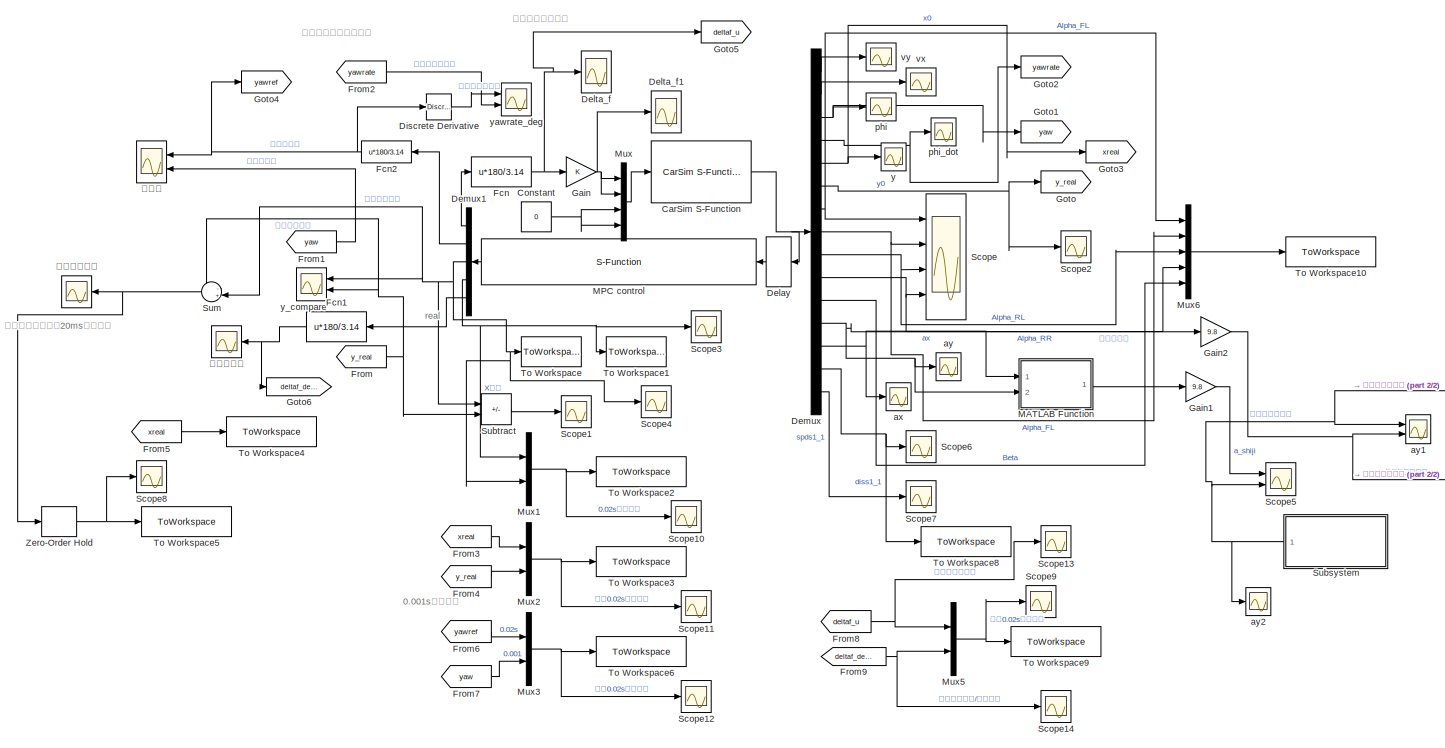
[diagram: root canvas - part 1/2, most of the canvas]
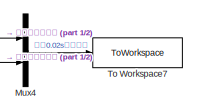
[diagram: root canvas - part 2/2, middle right region]
MODEL slx_88fed93ea479
KIND model
CONFIG AbsTol = auto
CONFIG EnableMultiTasking = off
CONFIG FixedStep = 0.001
CONFIG MaxStep = auto
CONFIG MinStep = auto
CONFIG PostLoadFcn = , if any(exist('dsrtsu_mdlpostloadfcn', 'file') == [2, 3, 6]), try dsrtsu_mdlpostloadfcn('Execute', bdroot); catch fprintf('Error in PostLoadFcn (dsrtsu_mdlpostloadfcn) for model "%s":\n %s\n', bdroot, lasterr); end, end, \n
CONFIG RelTol = 1e-3
CONFIG SampleTimeConstraint = Unconstrained
CONFIG SolverName = FixedStepAuto
CONFIG StartTime = 0.0
CONFIG StopTime = 6
BLOCK [Reference] CarSim S-Function  REF=Solver_SF/CarSim S-Function
  Ports = [1, 1]
  Priority = 1
  SourceBlock = Solver_SF/CarSim S-Function
  SourceProductName = CarSim S-Function
  SourceType = Vehicle math model library
BLOCK [Constant] Constant
  Value = 0
BLOCK [Delay] Delay
  DelayLength = 1
  InitialCondition = 0
  InputPortMap = u0
  NameLocation = top
  Ports = [1, 1]
BLOCK [Scope] Delta_f
  Floating = off
  NumInputPorts = 1
  Ports = [1]
  ScopeSpecificationString = Simulink.scopes.TimeScopeBlockCfg('CurrentConfiguration', extmgr.ConfigurationSet(extmgr.Configuration('Core','General UI',true),extmgr.Configuration('Core','Source UI',true),extmgr.Configuration('Sources','WiredSimulink',true,'DataLoggingVariableName','ScopeData1'),extmgr.Configuration('Visuals','Time Domain',true,'SerializedDisplays',{struct('MinYLimReal','-0.90495','MaxYLimReal','0.93192','YLab...<+1439ch>
BLOCK [Scope] Delta_f1
  Floating = off
  NumInputPorts = 1
  Ports = [1]
  ScopeSpecificationString = Simulink.scopes.TimeScopeBlockCfg('CurrentConfiguration', extmgr.ConfigurationSet(extmgr.Configuration('Core','General UI',true),extmgr.Configuration('Core','Source UI',true),extmgr.Configuration('Sources','WiredSimulink',true,'DataLoggingVariableName','ScopeData1'),extmgr.Configuration('Visuals','Time Domain',true,'SerializedDisplays',{struct('MinYLimReal','-22.26371','MaxYLimReal','22.31421','YL...<+1449ch>
BLOCK [Demux] Demux
  Outputs = 15
  Ports = [1, 15]
BLOCK [Demux] Demux1
  NameLocation = top
  Outputs = 5
  Ports = [1, 5]
BLOCK [Reference] Discrete Derivative  REF=simulink/Discrete/Discrete Derivative
  Ports = [1, 1]
  SourceBlock = simulink/Discrete/Discrete Derivative
  SourceProductBaseCode = SL
  SourceType = Discrete Derivative
BLOCK [Fcn] Fcn
  Expr = u*180/3.14
BLOCK [Fcn] Fcn1
  Expr = u*180/3.14
  NameLocation = top
BLOCK [Fcn] Fcn2
  Expr = u*180/3.14
  NameLocation = top
BLOCK [From] From
  GotoTag = y_real
BLOCK [From] From1
  GotoTag = yaw
BLOCK [From] From2
  GotoTag = yawrate
BLOCK [From] From3
  GotoTag = xreal
BLOCK [From] From4
  GotoTag = y_real
BLOCK [From] From5
  GotoTag = xreal
BLOCK [From] From6
  GotoTag = yawref
BLOCK [From] From7
  GotoTag = yaw
BLOCK [From] From8
  GotoTag = deltaf_u
BLOCK [From] From9
  GotoTag = deltaf_deltaU
BLOCK [Gain] Gain
BLOCK [Gain] Gain1
  Gain = 9.8
BLOCK [Gain] Gain2
  Gain = 9.8
BLOCK [Goto] Goto
  GotoTag = y_real
BLOCK [Goto] Goto1
  GotoTag = yaw
BLOCK [Goto] Goto2
  GotoTag = yawrate
BLOCK [Goto] Goto3
  GotoTag = xreal
BLOCK [Goto] Goto4
  GotoTag = yawref
BLOCK [Goto] Goto5
  GotoTag = deltaf_u
BLOCK [Goto] Goto6
  GotoTag = deltaf_deltaU
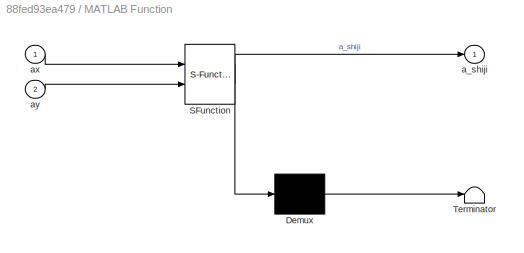
BLOCK [SubSystem] MATLAB Function
  ErrorFcn = Stateflow.Translate.translate
  PermitHierarchicalResolution = ExplicitOnly
  Ports = [2, 1]
  RequestExecContextInheritance = off
  SFBlockType = MATLAB Function
  TreatAsAtomicUnit = on
BLOCK [Demux] MATLAB Function/ Demux 
  Outputs = 1
  Ports = [1, 1]
BLOCK [S-Function] MATLAB Function/ SFunction 
  EnableBusSupport = on
  FunctionName = sf_sfun
  PortCounts = [2 2]
  Ports = [2, 2]
  SFcnIsStateOwnerBlock = off
  SFunctionDeploymentMode = off
  Tag = Stateflow S-Function 2
BLOCK [Terminator] MATLAB Function/ Terminator 
BLOCK [Outport] MATLAB Function/a_shiji
BLOCK [Inport] MATLAB Function/ax
BLOCK [Inport] MATLAB Function/ay
  Port = 2
BLOCK [S-Function] MPC control
  EnableBusSupport = off
  FunctionName = planning_control_add_beta_and_y
  NameLocation = top
  Ports = [1, 1]
  SFcnIsStateOwnerBlock = off
  SFunctionDeploymentMode = off
BLOCK [Mux] Mux
  DisplayOption = bar
  Ports = [4, 1]
BLOCK [Mux] Mux1
  DisplayOption = bar
  Inputs = 2
  Ports = [2, 1]
BLOCK [Mux] Mux2
  DisplayOption = bar
  Inputs = 2
  Ports = [2, 1]
BLOCK [Mux] Mux3
  DisplayOption = bar
  Inputs = 2
  Ports = [2, 1]
BLOCK [Mux] Mux4
  DisplayOption = bar
  Inputs = 2
  Ports = [2, 1]
BLOCK [Mux] Mux5
  DisplayOption = bar
  Inputs = 2
  Ports = [2, 1]
BLOCK [Mux] Mux6
  DisplayOption = bar
  Inputs = 5
  Ports = [5, 1]
BLOCK [Scope] Scope
  Floating = off
  NumInputPorts = 4
  Ports = [4]
  ScopeSpecificationString = Simulink.scopes.TimeScopeBlockCfg('CurrentConfiguration', extmgr.ConfigurationSet(extmgr.Configuration('Core','General UI',true,'FigureColor',[1 1 1]),extmgr.Configuration('Core','Source UI',true),extmgr.Configuration('Sources','WiredSimulink',true,'DataLoggingVariableName','ScopeData5','DataLoggingSaveFormat','Array','DataLoggingDecimation','1','DataLoggingDecimateData',true),extmgr.Configuration...<+1984ch>
BLOCK [Scope] Scope1
  Floating = off
  NumInputPorts = 1
  Ports = [1]
  ScopeSpecificationString = Simulink.scopes.TimeScopeBlockCfg('CurrentConfiguration', extmgr.ConfigurationSet(extmgr.Configuration('Core','General UI',true),extmgr.Configuration('Core','Source UI',true),extmgr.Configuration('Sources','WiredSimulink',true,'DataLoggingVariableName','ScopeData1'),extmgr.Configuration('Visuals','Time Domain',true,'SerializedDisplays',{struct('MinYLimReal','-0.05098','MaxYLimReal','0.14382','YLab...<+1423ch>
BLOCK [Scope] Scope10
  Floating = off
  NumInputPorts = 1
  Ports = [1]
  ScopeSpecificationString = Simulink.scopes.TimeScopeBlockCfg('CurrentConfiguration', extmgr.ConfigurationSet(extmgr.Configuration('Core','General UI',true),extmgr.Configuration('Core','Source UI',true),extmgr.Configuration('Sources','WiredSimulink',true,'DataLoggingVariableName','ScopeData1'),extmgr.Configuration('Visuals','Time Domain',true,'SerializedDisplays',{struct('MinYLimReal','-26.23635','MaxYLimReal','236.12712','Y...<+1490ch>
BLOCK [Scope] Scope11
  Floating = off
  NumInputPorts = 1
  Ports = [1]
  ScopeSpecificationString = Simulink.scopes.TimeScopeBlockCfg('CurrentConfiguration', extmgr.ConfigurationSet(extmgr.Configuration('Core','General UI',true),extmgr.Configuration('Core','Source UI',true),extmgr.Configuration('Sources','WiredSimulink',true,'DataLoggingVariableName','ScopeData2'),extmgr.Configuration('Visuals','Time Domain',true,'SerializedDisplays',{struct('MinYLimReal','-24.96793','MaxYLimReal','224.71141','Y...<+1494ch>
BLOCK [Scope] Scope12
  Floating = off
  NumInputPorts = 1
  Ports = [1]
  ScopeSpecificationString = Simulink.scopes.TimeScopeBlockCfg('CurrentConfiguration', extmgr.ConfigurationSet(extmgr.Configuration('Core','General UI',true),extmgr.Configuration('Core','Source UI',true),extmgr.Configuration('Sources','WiredSimulink',true,'DataLoggingVariableName','ScopeData3'),extmgr.Configuration('Visuals','Time Domain',true,'SerializedDisplays',{struct('MinYLimReal','-1.65804','MaxYLimReal','1.72024','YLab...<+1484ch>
BLOCK [Scope] Scope13
  Floating = off
  NumInputPorts = 1
  Ports = [1]
  ScopeSpecificationString = Simulink.scopes.TimeScopeBlockCfg('CurrentConfiguration', extmgr.ConfigurationSet(extmgr.Configuration('Core','General UI',true,'FigureColor',[1 1 1]),extmgr.Configuration('Core','Source UI',true),extmgr.Configuration('Sources','WiredSimulink',true,'DataLoggingVariableName','ScopeData4'),extmgr.Configuration('Visuals','Time Domain',true,'SerializedDisplays',{struct('MinYLimReal','-1.4544','MaxYLim...<+1613ch>
BLOCK [Scope] Scope14
  Floating = off
  NumInputPorts = 1
  Ports = [1]
  ScopeSpecificationString = Simulink.scopes.TimeScopeBlockCfg('CurrentConfiguration', extmgr.ConfigurationSet(extmgr.Configuration('Core','General UI',true,'FigureColor',[1 1 1]),extmgr.Configuration('Core','Source UI',true),extmgr.Configuration('Sources','WiredSimulink',true,'DataLoggingVariableName','ScopeData5'),extmgr.Configuration('Visuals','Time Domain',true,'SerializedDisplays',{struct('MinYLimReal','-0.06705','MaxYLi...<+1618ch>
BLOCK [Scope] Scope2
  Floating = off
  NumInputPorts = 1
  Ports = [1]
  ScopeSpecificationString = Simulink.scopes.TimeScopeBlockCfg('CurrentConfiguration', extmgr.ConfigurationSet(extmgr.Configuration('Core','General UI',true),extmgr.Configuration('Core','Source UI',true),extmgr.Configuration('Sources','WiredSimulink',true,'DataLoggingVariableName','ScopeData1'),extmgr.Configuration('Visuals','Time Domain',true,'SerializedDisplays',{struct('MinYLimReal','-0.4695','MaxYLimReal','4.22546','YLabe...<+1411ch>
BLOCK [Scope] Scope3
  Floating = off
  NumInputPorts = 1
  Ports = [1]
  ScopeSpecificationString = Simulink.scopes.TimeScopeBlockCfg('CurrentConfiguration', extmgr.ConfigurationSet(extmgr.Configuration('Core','General UI',true),extmgr.Configuration('Core','Source UI',true),extmgr.Configuration('Sources','WiredSimulink',true,'DataLoggingVariableName','ScopeData2'),extmgr.Configuration('Visuals','Time Domain',true,'SerializedDisplays',{struct('MinYLimReal','-21.66312','MaxYLimReal','196.77358','Y...<+1445ch>
BLOCK [Scope] Scope4
  Floating = off
  NumInputPorts = 1
  Ports = [1]
  ScopeSpecificationString = Simulink.scopes.TimeScopeBlockCfg('CurrentConfiguration', extmgr.ConfigurationSet(extmgr.Configuration('Core','General UI',true),extmgr.Configuration('Core','Source UI',true),extmgr.Configuration('Sources','WiredSimulink',true,'DataLoggingVariableName','ScopeData3'),extmgr.Configuration('Visuals','Time Domain',true,'SerializedDisplays',{struct('MinYLimReal','0.71959','MaxYLimReal','1.08186','YLabe...<+1411ch>
BLOCK [Scope] Scope5
  Floating = off
  NumInputPorts = 2
  Ports = [2]
  ScopeSpecificationString = Simulink.scopes.TimeScopeBlockCfg('CurrentConfiguration', extmgr.ConfigurationSet(extmgr.Configuration('Core','General UI',true),extmgr.Configuration('Core','Source UI',true),extmgr.Configuration('Sources','WiredSimulink',true,'DataLoggingVariableName','ScopeData5'),extmgr.Configuration('Visuals','Time Domain',true,'SerializedDisplays',{struct('MinYLimReal','-4.53015','MaxYLimReal','4.52542','YLab...<+1437ch>
BLOCK [Scope] Scope6
  Floating = off
  NumInputPorts = 1
  Ports = [1]
  ScopeSpecificationString = Simulink.scopes.TimeScopeBlockCfg('CurrentConfiguration', extmgr.ConfigurationSet(extmgr.Configuration('Core','General UI',true),extmgr.Configuration('Core','Source UI',true),extmgr.Configuration('Sources','WiredSimulink',true,'DataLoggingVariableName','ScopeData3'),extmgr.Configuration('Visuals','Time Domain',true,'SerializedDisplays',{struct('MinYLimReal','-6.4273','MaxYLimReal','9.56094','YLabe...<+1437ch>
BLOCK [Scope] Scope7
  Floating = off
  NumInputPorts = 1
  Ports = [1]
  ScopeSpecificationString = Simulink.scopes.TimeScopeBlockCfg('CurrentConfiguration', extmgr.ConfigurationSet(extmgr.Configuration('Core','General UI',true),extmgr.Configuration('Core','Source UI',true),extmgr.Configuration('Sources','WiredSimulink',true,'DataLoggingVariableName','ScopeData4'),extmgr.Configuration('Visuals','Time Domain',true,'SerializedDisplays',{struct('MinYLimReal','-135.9916','MaxYLimReal','23.92444','YL...<+1426ch>
BLOCK [Scope] Scope8
  Floating = off
  NumInputPorts = 1
  Ports = [1]
  ScopeSpecificationString = Simulink.scopes.TimeScopeBlockCfg('CurrentConfiguration', extmgr.ConfigurationSet(extmgr.Configuration('Core','General UI',true),extmgr.Configuration('Core','Source UI',true),extmgr.Configuration('Sources','WiredSimulink',true,'DataLoggingVariableName','ScopeData6'),extmgr.Configuration('Visuals','Time Domain',true,'SerializedDisplays',{struct('MinYLimReal','-0.04167','MaxYLimReal','0.15735','YLab...<+1399ch>
BLOCK [Scope] Scope9
  Floating = off
  NumInputPorts = 1
  Ports = [1]
  ScopeSpecificationString = Simulink.scopes.TimeScopeBlockCfg('CurrentConfiguration', extmgr.ConfigurationSet(extmgr.Configuration('Core','General UI',true),extmgr.Configuration('Core','Source UI',true),extmgr.Configuration('Sources','WiredSimulink',true,'DataLoggingVariableName','ScopeData7'),extmgr.Configuration('Visuals','Time Domain',true,'SerializedDisplays',{struct('MinYLimReal','-1.4544','MaxYLimReal','1.53514','YLabe...<+1482ch>
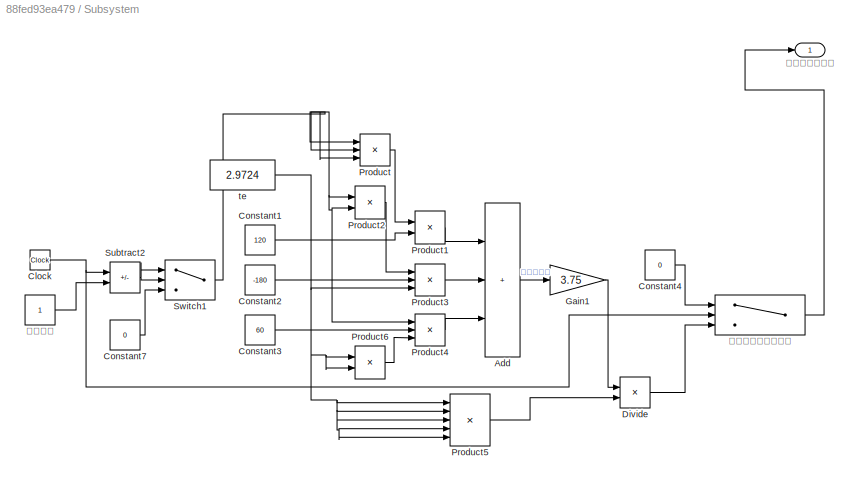
BLOCK [SubSystem] Subsystem
  NameLocation = top
  Ports = [0, 1]
  RequestExecContextInheritance = off
BLOCK [Sum] Subsystem/Add
  IconShape = rectangular
  Inputs = +++
  Ports = [3, 1]
BLOCK [Clock] Subsystem/Clock
BLOCK [Constant] Subsystem/Constant1
  Value = 120
BLOCK [Constant] Subsystem/Constant2
  Value = -180
BLOCK [Constant] Subsystem/Constant3
  Value = 60
BLOCK [Constant] Subsystem/Constant4
  Value = 0
BLOCK [Constant] Subsystem/Constant7
  Value = 0
BLOCK [Product] Subsystem/Divide
  Inputs = */
  Ports = [2, 1]
BLOCK [Gain] Subsystem/Gain1
  Gain = 3.75
BLOCK [Product] Subsystem/Product
  Inputs = 3
  Ports = [3, 1]
BLOCK [Product] Subsystem/Product1
  Ports = [2, 1]
BLOCK [Product] Subsystem/Product2
  Ports = [2, 1]
BLOCK [Product] Subsystem/Product3
  Inputs = 3
  Ports = [3, 1]
BLOCK [Product] Subsystem/Product4
  Inputs = 3
  Ports = [3, 1]
BLOCK [Product] Subsystem/Product5
  Inputs = 5
  Ports = [5, 1]
BLOCK [Product] Subsystem/Product6
  Ports = [2, 1]
BLOCK [Sum] Subsystem/Subtract2
  IconShape = rectangular
  Inputs = +-
  Ports = [2, 1]
BLOCK [Switch] Subsystem/Switch1
  Criteria = u2 > Threshold
  InputSameDT = off
  SaturateOnIntegerOverflow = off
BLOCK [Constant] Subsystem/te
  Value = 2.9724
BLOCK [Outport] Subsystem/期望横向加速度
BLOCK [Constant] Subsystem/直行时间
BLOCK [Switch] Subsystem/直行时间加换道时间
  Criteria = u2 > Threshold
  InputSameDT = off
  SaturateOnIntegerOverflow = off
  Threshold = 3.9724
BLOCK [Sum] Subtract
  IconShape = rectangular
  Inputs = +-
  Ports = [2, 1]
BLOCK [Sum] Sum
  Inputs = -+|
  NameLocation = top
  Ports = [2, 1]
BLOCK [ToWorkspace] To Workspace
  FixptAsFi = on
  MaxDataPoints = inf
  Ports = [1]
  SampleTime = -1
  VariableName = y
BLOCK [ToWorkspace] To Workspace1
  FixptAsFi = on
  MaxDataPoints = inf
  Ports = [1]
  SampleTime = -1
  VariableName = x
BLOCK [ToWorkspace] To Workspace10
  Decimation = 20
  FixptAsFi = on
  MaxDataPoints = inf
  Ports = [1]
  SampleTime = -1
  SaveFormat = Timeseries
  VariableName = alpha_beta_duibi
BLOCK [ToWorkspace] To Workspace2
  FixptAsFi = on
  MaxDataPoints = inf
  Ports = [1]
  SampleTime = -1
  SaveFormat = Timeseries
  VariableName = XYref
BLOCK [ToWorkspace] To Workspace3
  Decimation = 20
  FixptAsFi = on
  MaxDataPoints = inf
  Ports = [1]
  SampleTime = -1
  SaveFormat = Timeseries
  VariableName = XYact
BLOCK [ToWorkspace] To Workspace4
  Decimation = 20
  FixptAsFi = on
  MaxDataPoints = inf
  Ports = [1]
  SampleTime = -1
  SaveFormat = Timeseries
  VariableName = Xreal_20ms
BLOCK [ToWorkspace] To Workspace5
  FixptAsFi = on
  MaxDataPoints = inf
  Ports = [1]
  SampleTime = -1
  SaveFormat = Timeseries
  VariableName = y_yref_error
BLOCK [ToWorkspace] To Workspace6
  Decimation = 20
  FixptAsFi = on
  MaxDataPoints = inf
  Ports = [1]
  SampleTime = -1
  SaveFormat = Timeseries
  VariableName = yawduibi
BLOCK [ToWorkspace] To Workspace7
  Decimation = 20
  FixptAsFi = on
  MaxDataPoints = inf
  Ports = [1]
  SampleTime = -1
  SaveFormat = Timeseries
  VariableName = ay_duibi
BLOCK [ToWorkspace] To Workspace8
  Decimation = 20
  FixptAsFi = on
  MaxDataPoints = inf
  Ports = [1]
  SampleTime = -1
  SaveFormat = Timeseries
  VariableName = diss1_1
BLOCK [ToWorkspace] To Workspace9
  FixptAsFi = on
  MaxDataPoints = inf
  Ports = [1]
  SampleTime = -1
  SaveFormat = Timeseries
  VariableName = u_deltau
BLOCK [ZeroOrderHold] Zero-Order Hold
  SampleTime = 0.02
BLOCK [Scope] ax
  Floating = off
  NumInputPorts = 1
  Ports = [1]
  ScopeSpecificationString = Simulink.scopes.TimeScopeBlockCfg('CurrentConfiguration', extmgr.ConfigurationSet(extmgr.Configuration('Core','General UI',true),extmgr.Configuration('Core','Source UI',true),extmgr.Configuration('Sources','WiredSimulink',true,'DataLoggingVariableName','ScopeData4','DataLoggingSaveFormat','Array','DataLoggingDecimation','1','DataLoggingDecimateData',true),extmgr.Configuration('Visuals','Time Domai...<+1483ch>
BLOCK [Scope] ay
  Floating = off
  NumInputPorts = 1
  Ports = [1]
  ScopeSpecificationString = Simulink.scopes.TimeScopeBlockCfg('CurrentConfiguration', extmgr.ConfigurationSet(extmgr.Configuration('Core','General UI',true),extmgr.Configuration('Core','Source UI',true),extmgr.Configuration('Sources','WiredSimulink',true,'DataLoggingVariableName','ScopeData1','DataLoggingSaveFormat','Array','DataLoggingDecimation','1','DataLoggingDecimateData',true),extmgr.Configuration('Visuals','Time Domai...<+1486ch>
BLOCK [Scope] ay1
  Floating = off
  NumInputPorts = 2
  Ports = [2]
  ScopeSpecificationString = Simulink.scopes.TimeScopeBlockCfg('CurrentConfiguration', extmgr.ConfigurationSet(extmgr.Configuration('Core','General UI',true),extmgr.Configuration('Core','Source UI',true),extmgr.Configuration('Sources','WiredSimulink',true,'DataLoggingVariableName','ScopeData2'),extmgr.Configuration('Visuals','Time Domain',true,'SerializedDisplays',{struct('MinYLimReal','-4.52951','MaxYLimReal','4.52406','YLab...<+1542ch>
BLOCK [Scope] ay2
  Floating = off
  NumInputPorts = 1
  Ports = [1]
  ScopeSpecificationString = Simulink.scopes.TimeScopeBlockCfg('CurrentConfiguration', extmgr.ConfigurationSet(extmgr.Configuration('Core','General UI',true),extmgr.Configuration('Core','Source UI',true),extmgr.Configuration('Sources','WiredSimulink',true,'DataLoggingVariableName','ScopeData8','DataLoggingSaveFormat','Array','DataLoggingDecimation','1','DataLoggingDecimateData',true),extmgr.Configuration('Visuals','Time Domai...<+1513ch>
BLOCK [Scope] phi
  Floating = off
  NumInputPorts = 1
  Ports = [1]
  ScopeSpecificationString = Simulink.scopes.TimeScopeBlockCfg('CurrentConfiguration', extmgr.ConfigurationSet(extmgr.Configuration('Core','General UI',true),extmgr.Configuration('Core','Source UI',true),extmgr.Configuration('Sources','WiredSimulink',true,'DataLoggingVariableName','ScopeData3','DataLoggingSaveFormat','Array','DataLoggingDecimation','1','DataLoggingDecimateData',true),extmgr.Configuration('Visuals','Time Domai...<+1485ch>
BLOCK [Scope] phi_dot
  Floating = off
  NumInputPorts = 1
  Ports = [1]
  ScopeSpecificationString = Simulink.scopes.TimeScopeBlockCfg('CurrentConfiguration', extmgr.ConfigurationSet(extmgr.Configuration('Core','General UI',true),extmgr.Configuration('Core','Source UI',true),extmgr.Configuration('Sources','WiredSimulink',true,'DataLoggingVariableName','ScopeData4','DataLoggingSaveFormat','Array','DataLoggingDecimation','1','DataLoggingDecimateData',true),extmgr.Configuration('Visuals','Time Domai...<+1491ch>
BLOCK [Scope] vx
  Floating = off
  NumInputPorts = 1
  Ports = [1]
  ScopeSpecificationString = Simulink.scopes.TimeScopeBlockCfg('CurrentConfiguration', extmgr.ConfigurationSet(extmgr.Configuration('Core','General UI',true),extmgr.Configuration('Core','Source UI',true),extmgr.Configuration('Sources','WiredSimulink',true,'DataLoggingVariableName','ScopeData2','DataLoggingSaveFormat','Array','DataLoggingDecimation','1','DataLoggingDecimateData',true),extmgr.Configuration('Visuals','Time Domai...<+1481ch>
BLOCK [Scope] vy
  Floating = off
  NumInputPorts = 1
  Ports = [1]
  ScopeSpecificationString = Simulink.scopes.TimeScopeBlockCfg('CurrentConfiguration', extmgr.ConfigurationSet(extmgr.Configuration('Core','General UI',true),extmgr.Configuration('Core','Source UI',true),extmgr.Configuration('Sources','WiredSimulink',true,'DataLoggingVariableName','ScopeData1','DataLoggingSaveFormat','Array','DataLoggingDecimation','1','DataLoggingDecimateData',true),extmgr.Configuration('Visuals','Time Domai...<+1486ch>
BLOCK [Scope] y
  Floating = off
  NumInputPorts = 1
  Ports = [1]
  ScopeSpecificationString = Simulink.scopes.TimeScopeBlockCfg('CurrentConfiguration', extmgr.ConfigurationSet(extmgr.Configuration('Core','General UI',true),extmgr.Configuration('Core','Source UI',true),extmgr.Configuration('Sources','WiredSimulink',true,'DataLoggingVariableName','ScopeData2','DataLoggingSaveFormat','Array','DataLoggingDecimation','1','DataLoggingDecimateData',true),extmgr.Configuration('Visuals','Time Domai...<+1545ch>
BLOCK [Scope] y_compare
  Floating = off
  NameLocation = top
  NumInputPorts = 2
  Ports = [2]
  ScopeSpecificationString = Simulink.scopes.TimeScopeBlockCfg('CurrentConfiguration', extmgr.ConfigurationSet(extmgr.Configuration('Core','General UI',true,'FigureColor',[1 1 1]),extmgr.Configuration('Core','Source UI',true),extmgr.Configuration('Sources','WiredSimulink',true,'DataLoggingVariableName','ScopeData6','DataLoggingSaveFormat','Array','DataLoggingDecimation','1','DataLoggingDecimateData',true),extmgr.Configuration...<+1840ch>
BLOCK [Scope] yawrate_deg
  Floating = off
  NumInputPorts = 2
  Ports = [2]
  ScopeSpecificationString = Simulink.scopes.TimeScopeBlockCfg('CurrentConfiguration', extmgr.ConfigurationSet(extmgr.Configuration('Core','General UI',true),extmgr.Configuration('Core','Source UI',true),extmgr.Configuration('Sources','WiredSimulink',true,'DataLoggingVariableName','ScopeData2'),extmgr.Configuration('Visuals','Time Domain',true,'SerializedDisplays',{struct('MinYLimReal','-8.77525','MaxYLimReal','9.43209','YLab...<+1399ch>
BLOCK [Scope] 控制量增量
  Floating = off
  NameLocation = top
  NumInputPorts = 1
  Ports = [1]
  ScopeSpecificationString = Simulink.scopes.TimeScopeBlockCfg('CurrentConfiguration', extmgr.ConfigurationSet(extmgr.Configuration('Core','General UI',true),extmgr.Configuration('Core','Source UI',true),extmgr.Configuration('Sources','WiredSimulink',true,'DataLoggingVariableName','ScopeData1'),extmgr.Configuration('Visuals','Time Domain',true,'SerializedDisplays',{struct('MinYLimReal','-0.06705','MaxYLimReal','0.10164','YLab...<+1388ch>
BLOCK [Scope] 横向位移误差
  Floating = off
  NameLocation = top
  NumInputPorts = 1
  Ports = [1]
  ScopeSpecificationString = Simulink.scopes.TimeScopeBlockCfg('CurrentConfiguration', extmgr.ConfigurationSet(extmgr.Configuration('Core','General UI',true),extmgr.Configuration('Core','Source UI',true),extmgr.Configuration('Sources','WiredSimulink',true,'DataLoggingVariableName','ScopeData5','SampleTime','0.02'),extmgr.Configuration('Visuals','Time Domain',true,'SerializedDisplays',{struct('MinYLimReal','-0.04663','MaxYLimR...<+1481ch>
BLOCK [Scope] 横摆角
  Floating = off
  NameLocation = top
  NumInputPorts = 2
  Ports = [2]
  ScopeSpecificationString = Simulink.scopes.TimeScopeBlockCfg('CurrentConfiguration', extmgr.ConfigurationSet(extmgr.Configuration('Core','General UI',true,'FigureColor',[1 1 1]),extmgr.Configuration('Core','Source UI',true),extmgr.Configuration('Sources','WiredSimulink',true,'DataLoggingVariableName','ScopeData1','DataLoggingSaveFormat','Array','DataLoggingDecimation','1','DataLoggingDecimateData',true),extmgr.Configuration...<+1789ch>
ANNOTATION (root): 0.001s输出一次
ANNOTATION (root): 横摆角速度先不画出来
ANNOTATION (root): real
ANNOTATION (root): 已对横向位移误差20ms输出一次
ANNOTATION (root): 控制量，前轮转角
NET CarSim S-Function:1 -> Delay:1, Demux:1
NET Constant:1 -> Mux:3, Mux:4
LINE Delay:1 -> MPC control:1
LINE Demux1:1 -> Fcn:1
LINE Demux1:2 -> Fcn2:1
NET Demux1:3 -> Mux1:2, Scope4:1, Subtract:1, Sum:2, To Workspace:1, y_compare:1
NET Demux1:4 -> Mux1:1, Scope3:1, To Workspace1:1
LINE Demux1:5 -> Fcn1:1
LINE Demux:1 -> vy:1
NET Demux:10 -> Mux6:4, Scope:4
LINE Demux:11 -> Mux6:5
NET Demux:12 -> Gain2:1, MATLAB Function:2, ay:1
NET Demux:13 -> MATLAB Function:1, ax:1
NET Demux:14 -> Scope6:1, To Workspace8:1
LINE Demux:15 -> Scope7:1
LINE Demux:2 -> vx:1
NET Demux:3 -> Goto1:1, phi:1
NET Demux:4 -> Goto2:1, phi_dot:1
NET Demux:5 -> Goto3:1, y:1
NET Demux:6 -> Goto:1, Scope2:1
NET Demux:7 -> Mux6:1, Scope:1
NET Demux:8 -> Mux6:2, Scope:2
NET Demux:9 -> Mux6:3, Scope:3
LINE Discrete Derivative:1 -> yawrate_deg:1
NET Fcn1:1 -> Goto6:1, 控制量增量:1
NET Fcn2:1 -> Discrete Derivative:1, Goto4:1, 横摆角:1
NET Fcn:1 -> Delta_f:1, Gain:1, Goto5:1
LINE From1:1 -> 横摆角:2
LINE From2:1 -> yawrate_deg:2
LINE From3:1 -> Mux2:1
LINE From4:1 -> Mux2:2
LINE From5:1 -> To Workspace4:1
LINE From6:1 -> Mux3:1
LINE From7:1 -> Mux3:2
NET From8:1 -> Mux5:1, Scope13:1
NET From9:1 -> Mux5:2, Scope14:1
NET From:1 -> Subtract:2, Sum:1, y_compare:2
LINE Gain1:1 -> Scope5:1
NET Gain2:1 -> Mux4:2, ay1:2
NET Gain:1 -> Delta_f1:1, Mux:1, Mux:2
LINE MATLAB Function:1 -> Gain1:1
LINE MPC control:1 -> Demux1:1
NET Mux1:1 -> Scope10:1, To Workspace2:1
NET Mux2:1 -> Scope11:1, To Workspace3:1
NET Mux3:1 -> Scope12:1, To Workspace6:1
LINE Mux4:1 -> To Workspace7:1
NET Mux5:1 -> Scope9:1, To Workspace9:1
LINE Mux6:1 -> To Workspace10:1
LINE Mux:1 -> CarSim S-Function:1
LINE Subsystem/Add:1 -> Subsystem/Gain1:1
NET Subsystem/Clock:1 -> Subsystem/Subtract2:1, Subsystem/直行时间加换道时间:2
LINE Subsystem/Constant1:1 -> Subsystem/Product1:2
LINE Subsystem/Constant2:1 -> Subsystem/Product3:2
LINE Subsystem/Constant3:1 -> Subsystem/Product4:2
LINE Subsystem/Constant4:1 -> Subsystem/直行时间加换道时间:1
LINE Subsystem/Constant7:1 -> Subsystem/Switch1:3
LINE Subsystem/Divide:1 -> Subsystem/直行时间加换道时间:3
LINE Subsystem/Gain1:1 -> Subsystem/Divide:1
LINE Subsystem/Product1:1 -> Subsystem/Add:1
LINE Subsystem/Product2:1 -> Subsystem/Product3:1
LINE Subsystem/Product3:1 -> Subsystem/Add:2
LINE Subsystem/Product4:1 -> Subsystem/Add:3
LINE Subsystem/Product5:1 -> Subsystem/Divide:2
LINE Subsystem/Product6:1 -> Subsystem/Product4:3
LINE Subsystem/Product:1 -> Subsystem/Product1:1
NET Subsystem/Subtract2:1 -> Subsystem/Switch1:1, Subsystem/Switch1:2
NET Subsystem/Switch1:1 -> Subsystem/Product2:1, Subsystem/Product2:2, Subsystem/Product4:1, Subsystem/Product:1, Subsystem/Product:2, Subsystem/Product:3
NET Subsystem/te:1 -> Subsystem/Product3:3, Subsystem/Product5:1, Subsystem/Product5:2, Subsystem/Product5:3, Subsystem/Product5:4, Subsystem/Product5:5, Subsystem/Product6:1, Subsystem/Product6:2
LINE Subsystem/直行时间:1 -> Subsystem/Subtract2:2
LINE Subsystem/直行时间加换道时间:1 -> Subsystem/期望横向加速度:1
NET Subsystem:1 -> Mux4:1, Scope5:2, ay1:1, ay2:1
LINE Subtract:1 -> Scope1:1
NET Sum:1 -> Zero-Order Hold:1, 横向位移误差:1
NET Zero-Order Hold:1 -> Scope8:1, To Workspace5:1
note: NET lines group one-source signal fan-out (src -> all destinations, sorted); 1:1 wires keep LINE
CHART MATLAB Function states=1 transitions=1
  STATE_LABEL 'eML_blk_kernel()'
  STATE_LABEL 'SCRIPT:\nfunction a_shiji = fcn(ax,ay)\nif ay>0\n    a_shiji=sqrt(ax^2+ay^2);\nelse\n    a_shiji=-sqrt(ax^2+ay^2);\nend\n\n'
CHART  states=0 transitions=0
